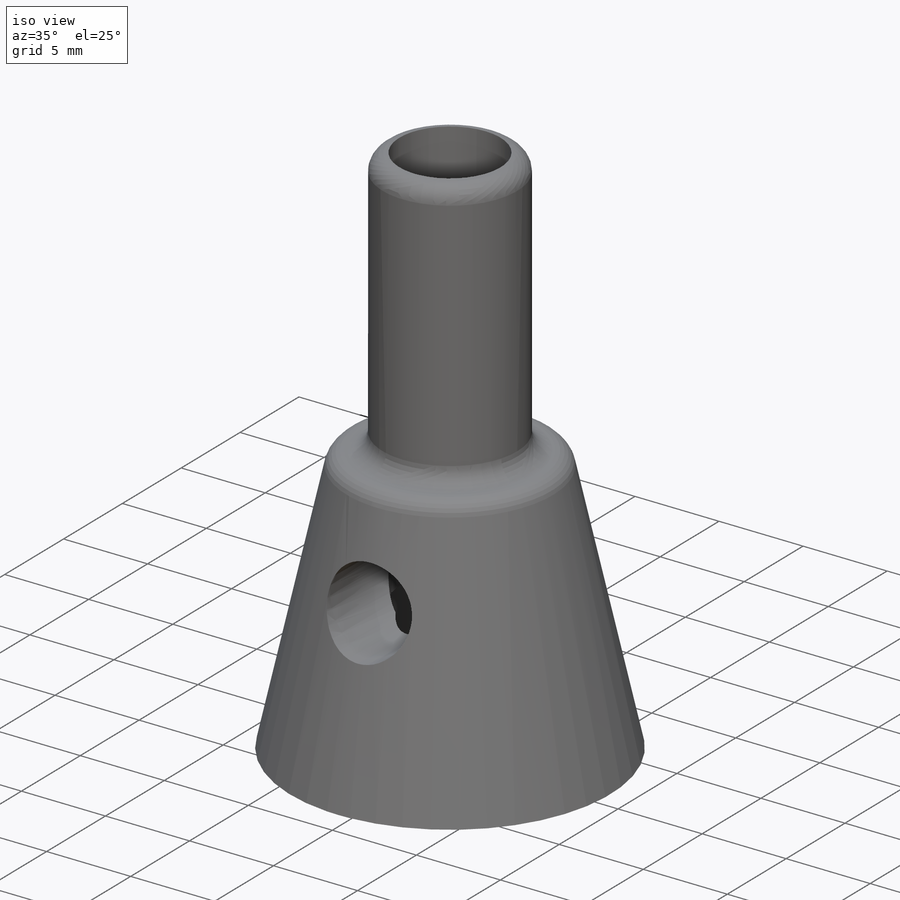
[diagram: iso view]
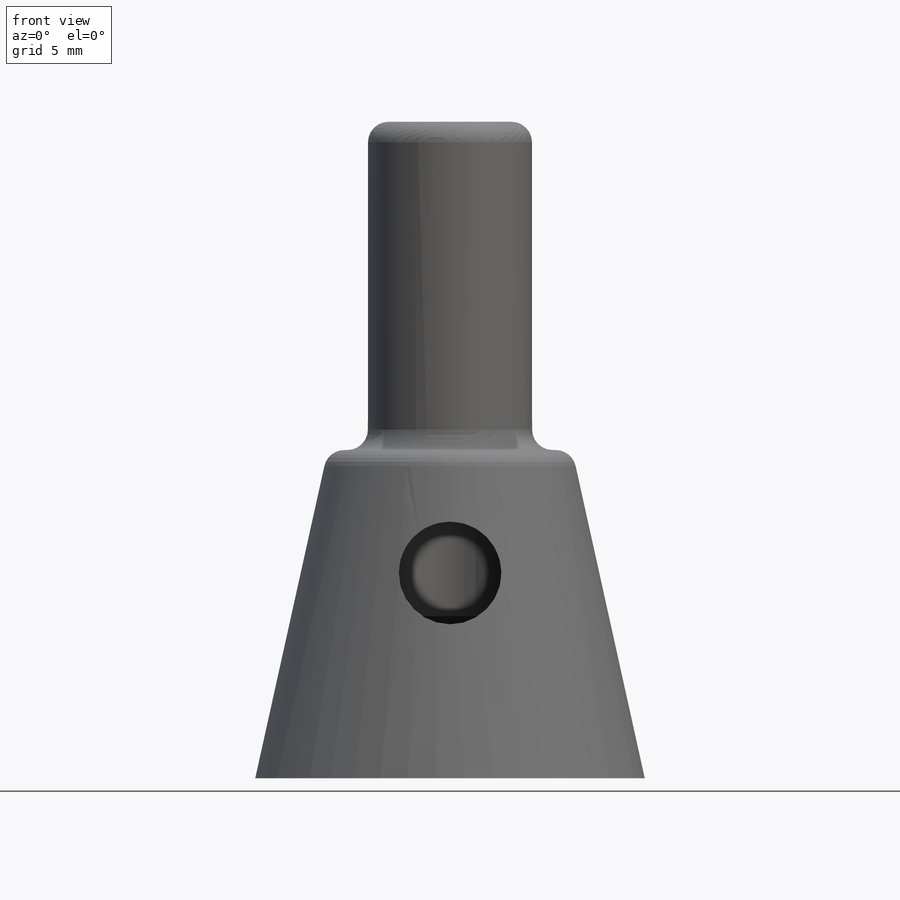
[diagram: front view]
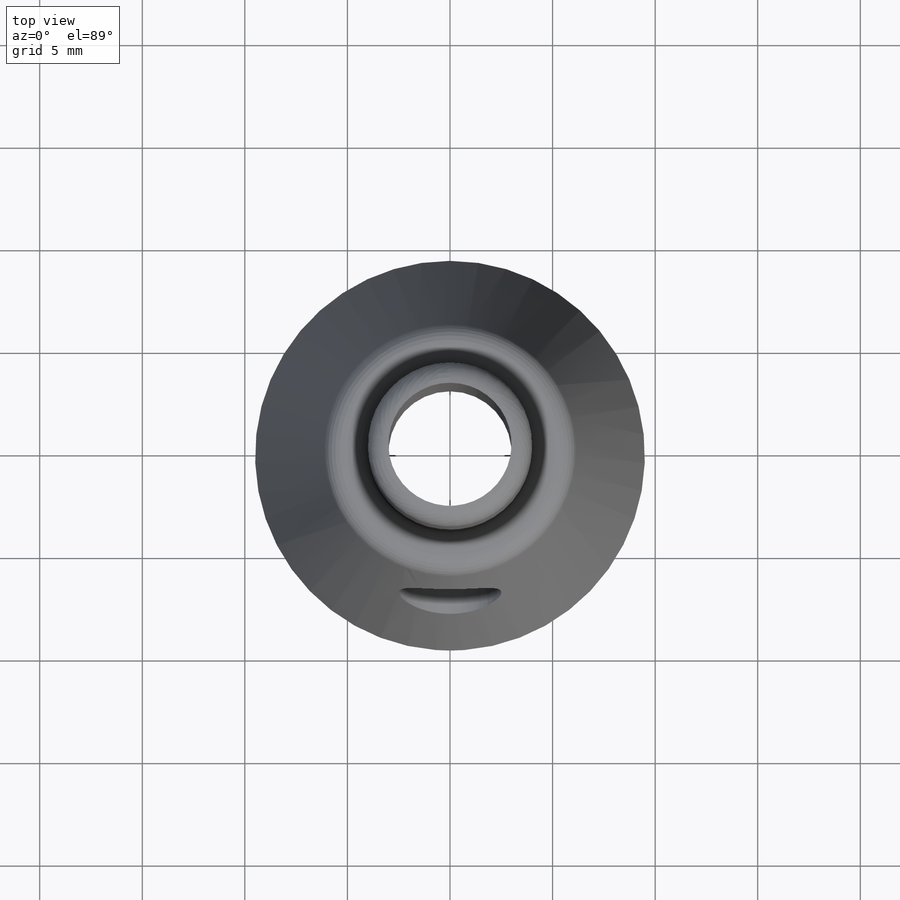
[diagram: top view]
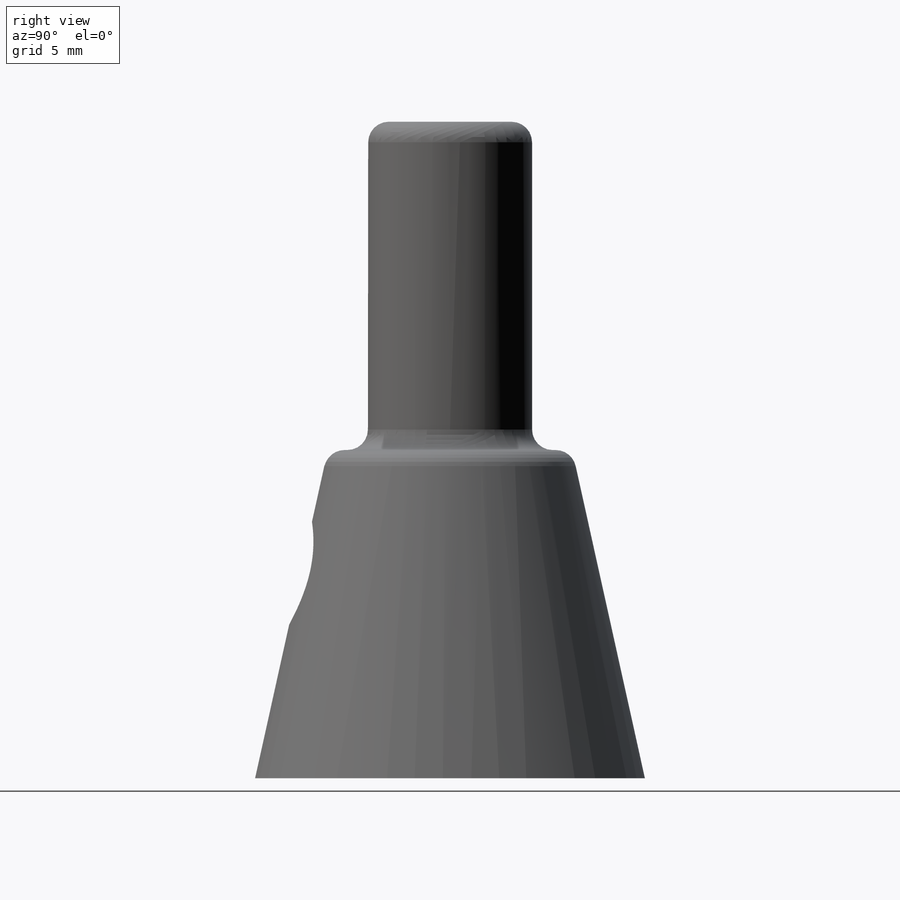
[diagram: right view]
SOLIDWORKS PART (.sldprt)
format: sldprt  version: not decoded by parser v0  size: 272,896 bytes
history: native  units: mm
features: sketch x6, plane x3, fillet x2, hole x2, thread x2, material x1, revolve x1 (+9 scaffold rows collapsed)
feature tree (26):
  scaffold x9  (default folders/planes/origin — collapsed)
  material  "Matériau <non spécifié>"
  plane  "Plan de face"
  plane  "Plan de dessus"
  plane  "Plan de droite"
  sketch  "Esquisse1"  dims[c1.D1=16.0mm c1.D2=9.5mm c1.D3=6.0mm c2.D2=4.0mm c2.D1=6.0mm c3.D2=3.0mm c3.D3=4.5mm c3.D4=7.0mm c3.D5=16.0mm c3.D6=1.0mm c3.D7=16.0mm c3.D1=16.0mm c4.D1=12.5deg c4.D8=9.5mm]
  revolve  "Révolution1"  Angle=360deg
  fillet  "Congé1"  Radius=1mm
  sketch  "Esquisse8"  dims[D1=6.0mm]
  hole  "Trou taraudé M6x1.02"  Diameter=5mm Depth=17mm
  sketch  "Esquisse10"
  sketch  "Esquisse9"  dims[hole-wizard template sketch: 46 standard entries collapsed; hole parameters kept: c15.Diamètre du trou pour taraudage=5.0mm c15.Profondeur du trou pour taraudage=17.0mm c15.D3=~14.816244mm c15.Angle de pointe=118.0deg]
  thread  "Filetage de perçage2"  Diameter=7.859375mm  [1 undecoded]
  fillet  "Congé2"  Radius=1mm
  hole  "Trou taraudé M10x1.01"  Diameter=9mm Depth=7mm
  sketch  "Esquisse12"
  sketch  "Esquisse11"  dims[hole-wizard template sketch: 46 standard entries collapsed; hole parameters kept: c15.Diamètre du trou pour taraudage=9.0mm c15.Profondeur du trou pour taraudage=7.0mm c15.D3=~14.816244mm c15.Angle de pointe=118.0deg]
  thread  "Filetage de perçage3"  Diameter=7mm  [1 undecoded]
decode coverage: 11 of 13 modeling features carry decoded parameters
note: ~ marks probable driven/reference dimensions
note: 2 parameter values undecoded
note: suppression state not decoded; provenance and decode notes live in map.json
